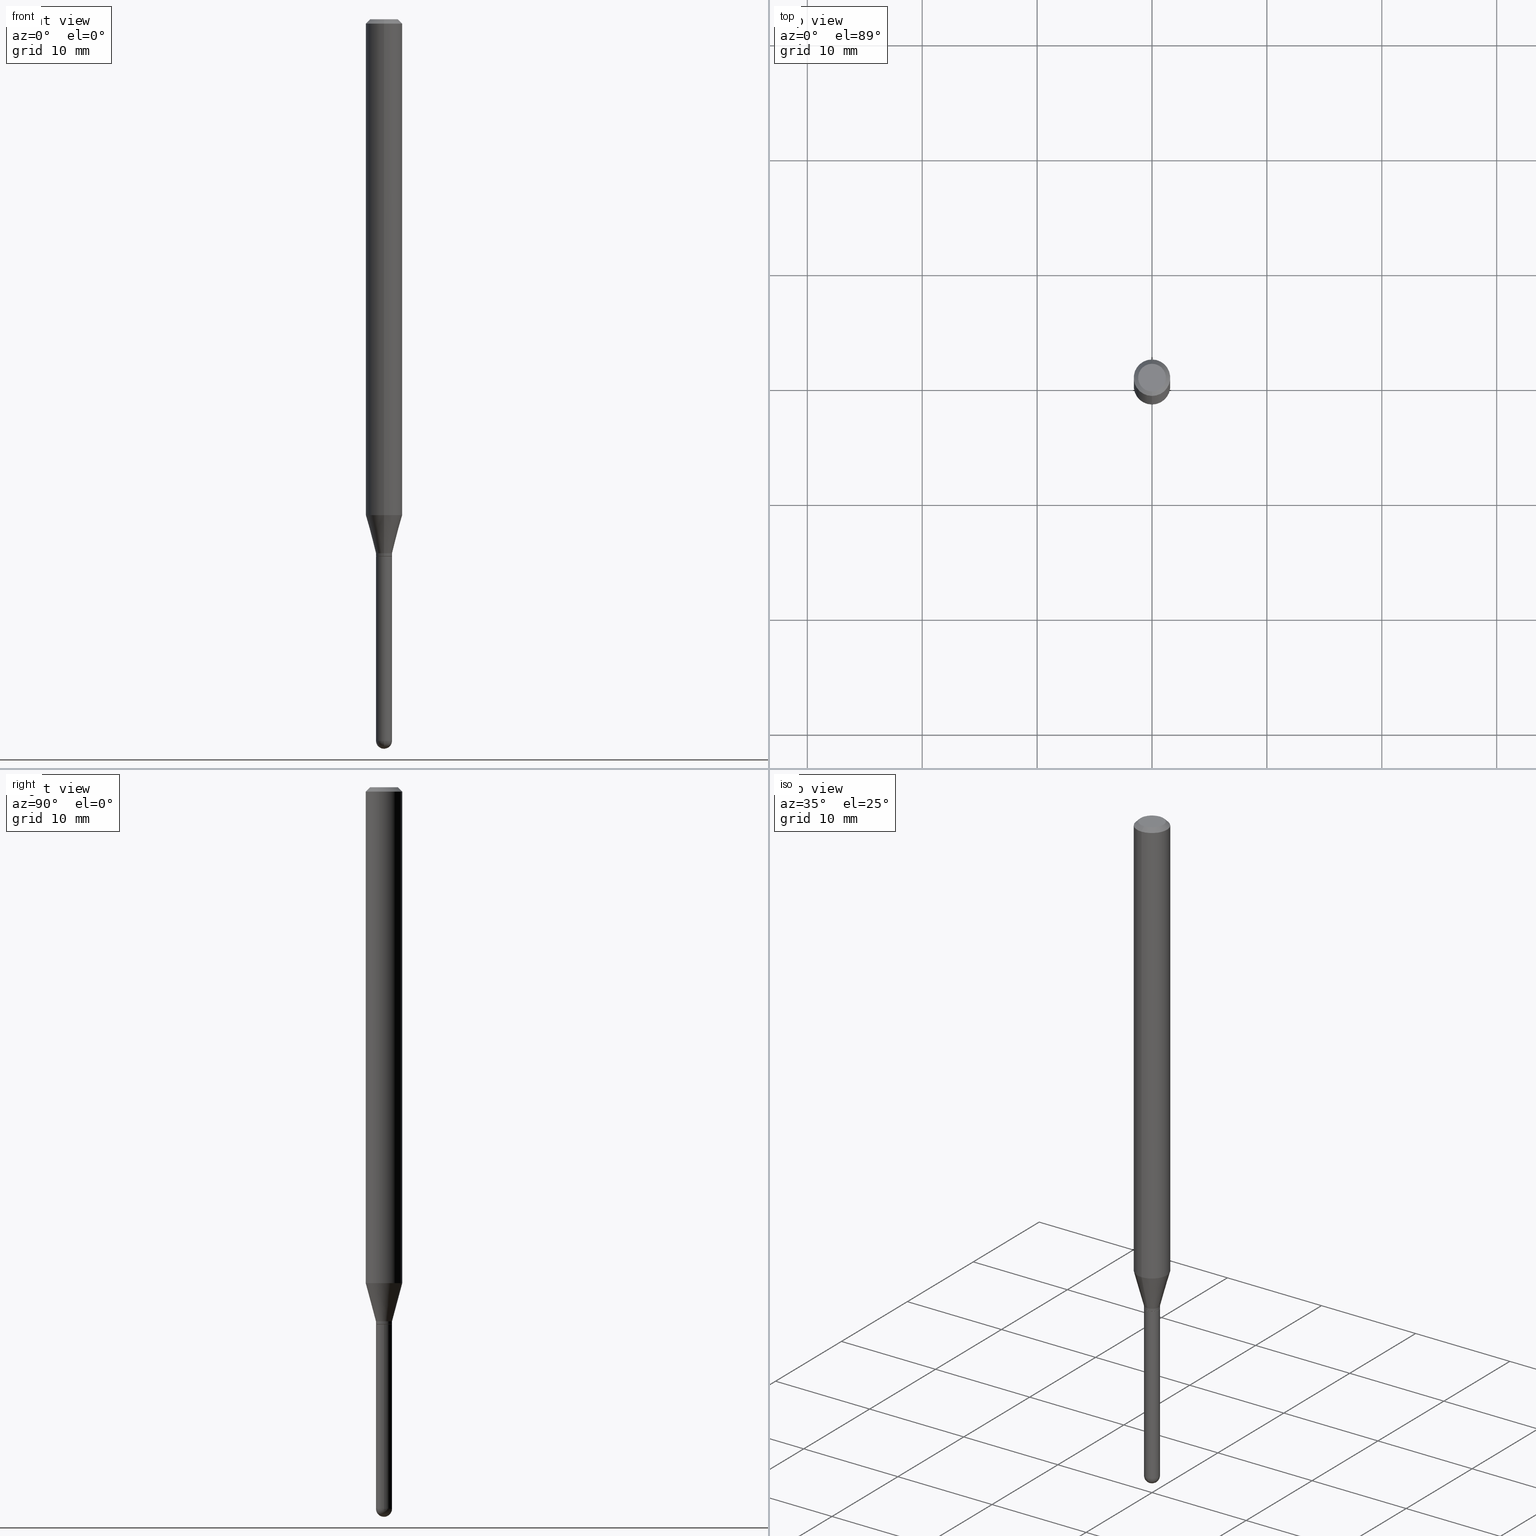
[diagram: canonical four-view strip — front | top / right | iso, engineering-drawing reading convention]
A machine part, canonical four-view strip (front | top / right | iso — engineering-drawing reading convention). The complete STEP part file that produces these views, byte-faithful:
ISO-10303-21;
HEADER;
FILE_DESCRIPTION (( 'STEP AP203' ),
    '1' );
FILE_NAME ('01017.STEP',
    '2024-03-07T19:48:25',
    ( '' ),
    ( '' ),
    'SwSTEP 2.0',
    'SolidWorks 2023',
    '' );
FILE_SCHEMA (( 'CONFIG_CONTROL_DESIGN' ));
ENDSEC;

DATA;
#1 = CC_DESIGN_APPROVAL ( #343, ( #149 ) ) ;
#2 = DATE_AND_TIME ( #474, #307 ) ;
#3 = DIRECTION ( 'NONE',  ( 1.000000000000000000, -6.982962677686279332E-15, 0.000000000000000000 ) ) ;
#4 = EDGE_CURVE ( 'NONE', #499, #385, #225, .T. ) ;
#5 = CARTESIAN_POINT ( 'NONE',  ( 1.920314736364331113E-16, 0.02749999999999141673, -2.472499999999999254 ) ) ;
#6 = DIRECTION ( 'NONE',  ( -2.445468806185136597E-29, 3.491481338843145583E-15, 1.000000000000000000 ) ) ;
#7 = DIRECTION ( 'NONE',  ( 1.000000000000000000, -6.982962677686265922E-15, 4.883557194083112340E-29 ) ) ;
#8 = DIRECTION ( 'NONE',  ( -2.445468806185136597E-29, 3.491481338843145583E-15, 1.000000000000000000 ) ) ;
#9 = EDGE_CURVE ( 'NONE', #385, #246, #301, .T. ) ;
#10 = AXIS2_PLACEMENT_3D ( 'NONE', #296, #298, #333 ) ;
#11 = PLANE ( 'NONE',  #130 ) ;
#12 = DIRECTION ( 'NONE',  ( -6.982962677686265922E-15, -1.000000000000000000, 3.491487976975052738E-15 ) ) ;
#13 = ORIENTED_EDGE ( 'NONE', *, *, #127, .T. ) ;
#14 = ORIENTED_EDGE ( 'NONE', *, *, #199, .F. ) ;
#15 = LINE ( 'NONE', #134, #336 ) ;
#16 = ADVANCED_FACE ( 'NONE', ( #106 ), #64, .T. ) ;
#17 = CIRCLE ( 'NONE', #496, 0.02750000000000000014 ) ;
#18 = LOCAL_TIME ( 14, 48, 25.00000000000000000, #470 ) ;
#19 = ORIENTED_EDGE ( 'NONE', *, *, #492, .F. ) ;
#20 = EDGE_LOOP ( 'NONE', ( #487, #187, #14, #189 ) ) ;
#21 = LINE ( 'NONE', #169, #473 ) ;
#22 = APPROVAL_ROLE ( '' ) ;
#23 = CARTESIAN_POINT ( 'NONE',  ( 4.499654074276417008E-29, -6.424337877634096660E-15, -1.840000000000000080 ) ) ;
#24 = EDGE_LOOP ( 'NONE', ( #109, #279, #379, #260 ) ) ;
#25 = DIRECTION ( 'NONE',  ( -6.982962677686265922E-15, -1.000000000000000000, 0.000000000000000000 ) ) ;
#26 = EDGE_CURVE ( 'NONE', #33, #167, #46, .T. ) ;
#27 = ORIENTED_EDGE ( 'NONE', *, *, #230, .T. ) ;
#28 = AXIS2_PLACEMENT_3D ( 'NONE', #346, #228, #185 ) ;
#29 = CARTESIAN_POINT ( 'NONE',  ( 6.044069915997506284E-29, -8.636055388987333140E-15, -2.472500000000000142 ) ) ;
#30 = CYLINDRICAL_SURFACE ( 'NONE', #77, 0.02750000000000000014 ) ;
#31 = AXIS2_PLACEMENT_3D ( 'NONE', #258, #447, #489 ) ;
#32 = ORIENTED_EDGE ( 'NONE', *, *, #267, .T. ) ;
#33 = VERTEX_POINT ( 'NONE', #426 ) ;
#34 = APPLICATION_PROTOCOL_DEFINITION ( 'international standard', 'config_control_design', 1994, #415 ) ;
#35 = LINE ( 'NONE', #295, #335 ) ;
#36 = PERSON_AND_ORGANIZATION_ROLE ( 'design_owner' ) ;
#37 = DIRECTION ( 'NONE',  ( 6.982962677686265922E-15, 1.000000000000000000, -3.483106191921935554E-15 ) ) ;
#38 = PERSON_AND_ORGANIZATION ( #242, #291 ) ;
#39 = CIRCLE ( 'NONE', #354, 0.02750000000000000014 ) ;
#40 = AXIS2_PLACEMENT_3D ( 'NONE', #290, #338, #455 ) ;
#41 = FACE_OUTER_BOUND ( 'NONE', #355, .T. ) ;
#42 = PERSON_AND_ORGANIZATION ( #242, #291 ) ;
#43 = EDGE_CURVE ( 'NONE', #337, #292, #288, .T. ) ;
#44 = DATE_TIME_ROLE ( 'creation_date' ) ;
#45 = CARTESIAN_POINT ( 'NONE',  ( 4.440892098501044258E-16, 0.06249999999999995837, -0.01500000000000022669 ) ) ;
#46 = CIRCLE ( 'NONE', #150, 0.02750000000000000014 ) ;
#47 = AXIS2_PLACEMENT_3D ( 'NONE', #23, #374, #253 ) ;
#48 = PERSON_AND_ORGANIZATION ( #242, #291 ) ;
#49 = DIRECTION ( 'NONE',  ( -2.445468806185136597E-29, 3.491481338843145583E-15, 1.000000000000000000 ) ) ;
#50 = CARTESIAN_POINT ( 'NONE',  ( 3.668196256203603906E-31, -5.237231965462582657E-17, -0.01500000000000000812 ) ) ;
#51 = EDGE_LOOP ( 'NONE', ( #435, #152, #68, #162 ) ) ;
#52 = CARTESIAN_POINT ( 'NONE',  ( 6.046421623292748621E-29, -8.632687610289675147E-15, -2.472499999999999254 ) ) ;
#53 = ADVANCED_FACE ( 'NONE', ( #347 ), #505, .T. ) ;
#54 = DIRECTION ( 'NONE',  ( -6.982962677686265922E-15, -1.000000000000000000, 4.370956789862821150E-15 ) ) ;
#55 = CLOSED_SHELL ( 'NONE', ( #178, #406, #484, #53, #326, #443, #186, #16, #297, #509, #389, #428 ) ) ;
#56 = AXIS2_PLACEMENT_3D ( 'NONE', #59, #348, #466 ) ;
#57 = ORIENTED_EDGE ( 'NONE', *, *, #105, .T. ) ;
#58 = DIRECTION ( 'NONE',  ( 1.000000000000000000, -6.982962677686279332E-15, 0.000000000000000000 ) ) ;
#59 = CARTESIAN_POINT ( 'NONE',  ( 4.475199432568393700E-29, -6.389422997864345911E-15, -1.829999999999999849 ) ) ;
#60 = ORIENTED_EDGE ( 'NONE', *, *, #26, .F. ) ;
#61 = DIRECTION ( 'NONE',  ( -2.445464170802401133E-29, 3.491487976975052738E-15, 1.000000000000000000 ) ) ;
#62 = EDGE_LOOP ( 'NONE', ( #427, #352, #493, #236, #429 ) ) ;
#63 = CARTESIAN_POINT ( 'NONE',  ( 6.044069915997506284E-29, -8.636055388987333140E-15, -2.472500000000000142 ) ) ;
#64 = CONICAL_SURFACE ( 'NONE', #211, 0.06250000000000000000, 0.7853981633974483900 ) ;
#65 = ORIENTED_EDGE ( 'NONE', *, *, #471, .T. ) ;
#66 = DIRECTION ( 'NONE',  ( -2.445464170802400853E-29, 3.491487976975052738E-15, 1.000000000000000000 ) ) ;
#67 = VERTEX_POINT ( 'NONE', #350 ) ;
#68 = ORIENTED_EDGE ( 'NONE', *, *, #43, .F. ) ;
#69 = DIRECTION ( 'NONE',  ( 1.000000000000000000, -6.982962677686279332E-15, 0.000000000000000000 ) ) ;
#70 = ORIENTED_EDGE ( 'NONE', *, *, #501, .F. ) ;
#71 = APPROVAL_PERSON_ORGANIZATION ( #42, #190, #465 ) ;
#72 = DIRECTION ( 'NONE',  ( -1.000000000000000000, 6.982962677686265922E-15, -4.883557194083112901E-29 ) ) ;
#73 = VERTEX_POINT ( 'NONE', #318 ) ;
#74 = EDGE_CURVE ( 'NONE', #67, #299, #475, .T. ) ;
#75 = UNCERTAINTY_MEASURE_WITH_UNIT (LENGTH_MEASURE( 1.000000000000000082E-05 ), #485, 'distance_accuracy_value', 'NONE');
#76 = AXIS2_PLACEMENT_3D ( 'NONE', #269, #66, #467 ) ;
#77 = AXIS2_PLACEMENT_3D ( 'NONE', #401, #6, #155 ) ;
#78 = DIRECTION ( 'NONE',  ( -2.445464170802400853E-29, 3.491487976975052738E-15, 1.000000000000000000 ) ) ;
#79 = ADVANCED_FACE ( 'NONE', ( #357 ), #321, .T. ) ;
#80 = PERSON_AND_ORGANIZATION_ROLE ( 'creator' ) ;
#81 = DIRECTION ( 'NONE',  ( -6.982962677686265922E-15, -1.000000000000000000, 3.483106191921935554E-15 ) ) ;
#82 = ORIENTED_EDGE ( 'NONE', *, *, #334, .F. ) ;
#83 = ORIENTED_EDGE ( 'NONE', *, *, #127, .F. ) ;
#84 = CYLINDRICAL_SURFACE ( 'NONE', #323, 0.02750000000000000014 ) ;
#85 = DIRECTION ( 'NONE',  ( -2.445464170802400853E-29, 3.491487976975052738E-15, 1.000000000000000000 ) ) ;
#86 = CARTESIAN_POINT ( 'NONE',  ( -0.02750000000000000014, -7.333107384546504605E-15, -2.472499999999999254 ) ) ;
#87 = CIRCLE ( 'NONE', #76, 0.02749999999999992381 ) ;
#88 = CIRCLE ( 'NONE', #378, 0.02699999999999999969 ) ;
#89 = EDGE_LOOP ( 'NONE', ( #165, #317, #293, #202 ) ) ;
#90 = EDGE_LOOP ( 'NONE', ( #229, #329 ) ) ;
#91 = DIRECTION ( 'NONE',  ( -7.105427357601001070E-15, -1.000000000000000000, 0.000000000000000000 ) ) ;
#92 =( NAMED_UNIT ( * ) PLANE_ANGLE_UNIT ( ) SI_UNIT ( $, .RADIAN. ) );
#93 = EDGE_LOOP ( 'NONE', ( #457, #32, #404, #482, #60 ) ) ;
#94 = CYLINDRICAL_SURFACE ( 'NONE', #183, 0.02749999999999992034 ) ;
#95 = EDGE_CURVE ( 'NONE', #210, #337, #395, .T. ) ;
#96 = AXIS2_PLACEMENT_3D ( 'NONE', #325, #126, #486 ) ;
#97 = AXIS2_PLACEMENT_3D ( 'NONE', #370, #129, #408 ) ;
#98 = CARTESIAN_POINT ( 'NONE',  ( -1.920314736363269849E-16, -0.02750000000000631106, -1.829999999999999849 ) ) ;
#99 = CARTESIAN_POINT ( 'NONE',  ( 0.000000000000000000, 0.000000000000000000, 0.000000000000000000 ) ) ;
#100 = CC_DESIGN_DATE_AND_TIME_ASSIGNMENT ( #268, #44, ( #149 ) ) ;
#101 = DIRECTION ( 'NONE',  ( -2.445468806185136597E-29, 3.491481338843145583E-15, 1.000000000000000000 ) ) ;
#102 = ORIENTED_EDGE ( 'NONE', *, *, #476, .T. ) ;
#103 = VECTOR ( 'NONE', #423, 39.37007874015748143 ) ;
#104 = CARTESIAN_POINT ( 'NONE',  ( 3.197442310920880154E-16, 0.02749999999999352962, -1.829999999999999849 ) ) ;
#105 = EDGE_CURVE ( 'NONE', #167, #33, #282, .T. ) ;
#106 = FACE_OUTER_BOUND ( 'NONE', #24, .T. ) ;
#107 = COORDINATED_UNIVERSAL_TIME_OFFSET ( 5, 0, .BEHIND. ) ;
#108 = CARTESIAN_POINT ( 'NONE',  ( 3.840629472727447874E-16, 0.04749999999999999362, -1.747056831868805383E-16 ) ) ;
#109 = ORIENTED_EDGE ( 'NONE', *, *, #74, .F. ) ;
#110 = APPROVAL_STATUS ( 'not_yet_approved' ) ;
#111 = EDGE_CURVE ( 'NONE', #73, #133, #217, .T. ) ;
#112 = VECTOR ( 'NONE', #144, 39.37007874015748143 ) ;
#113 = MANIFOLD_SOLID_BREP ( 'Body-Move/Copy2[2]', #55 ) ;
#114 = AXIS2_PLACEMENT_3D ( 'NONE', #294, #417, #25 ) ;
#115 = COORDINATED_UNIVERSAL_TIME_OFFSET ( 5, 0, .BEHIND. ) ;
#116 = CC_DESIGN_PERSON_AND_ORGANIZATION_ASSIGNMENT ( #48, #511, ( #412 ) ) ;
#117 = DIRECTION ( 'NONE',  ( 1.000000000000000000, -6.982962677686279332E-15, 0.000000000000000000 ) ) ;
#118 = ORIENTED_EDGE ( 'NONE', *, *, #9, .F. ) ;
#119 = DIRECTION ( 'NONE',  ( 2.438088387897960049E-29, -3.491481338843145188E-15, -1.000000000000000000 ) ) ;
#120 = AXIS2_PLACEMENT_3D ( 'NONE', #405, #438, #483 ) ;
#121 = EDGE_CURVE ( 'NONE', #67, #508, #176, .T. ) ;
#122 = DIRECTION ( 'NONE',  ( -2.445468806185136877E-29, 3.491481338843145188E-15, 1.000000000000000000 ) ) ;
#123 = CONICAL_SURFACE ( 'NONE', #120, 0.02749999999999992034, 0.2617993877991504625 ) ;
#124 = DIMENSIONAL_EXPONENTS ( 1.000000000000000000, 0.000000000000000000, 0.000000000000000000, 0.000000000000000000, 0.000000000000000000, 0.000000000000000000, 0.000000000000000000 ) ;
#125 = DIRECTION ( 'NONE',  ( -6.982962677686265922E-15, -1.000000000000000000, 4.370956789862821150E-15 ) ) ;
#126 = DIRECTION ( 'NONE',  ( -2.445464170802400853E-29, 3.491487976975052738E-15, 1.000000000000000000 ) ) ;
#127 = EDGE_CURVE ( 'NONE', #133, #499, #21, .T. ) ;
#128 = CYLINDRICAL_SURFACE ( 'NONE', #193, 0.06250000000000000000 ) ;
#129 = DIRECTION ( 'NONE',  ( 2.445464170802400853E-29, -3.491487976975052738E-15, -1.000000000000000000 ) ) ;
#130 = AXIS2_PLACEMENT_3D ( 'NONE', #245, #243, #247 ) ;
#131 = VECTOR ( 'NONE', #122, 39.37007874015748143 ) ;
#132 = DIRECTION ( 'NONE',  ( -6.982962677686265922E-15, -1.000000000000000000, 0.000000000000000000 ) ) ;
#133 = VERTEX_POINT ( 'NONE', #141 ) ;
#134 = CARTESIAN_POINT ( 'NONE',  ( -4.364351673553916201E-16, -0.06250000000000000000, 2.182179985609407961E-16 ) ) ;
#135 = CARTESIAN_POINT ( 'NONE',  ( 2.166682302127886427E-46, -3.093459842154199593E-32, -8.860004280565514793E-18 ) ) ;
#136 = CARTESIAN_POINT ( 'NONE',  ( 6.044069915997506284E-29, -8.636055388987333140E-15, -2.472500000000000142 ) ) ;
#137 = ADVANCED_FACE ( 'NONE', ( #460 ), #504, .T. ) ;
#138 = SECURITY_CLASSIFICATION ( '', '', #353 ) ;
#139 = FACE_OUTER_BOUND ( 'NONE', #93, .T. ) ;
#140 = ORIENTED_EDGE ( 'NONE', *, *, #259, .T. ) ;
#141 = CARTESIAN_POINT ( 'NONE',  ( 1.953992523340712846E-16, 0.02749999999999340472, -1.839500000000000135 ) ) ;
#142 = ORIENTED_EDGE ( 'NONE', *, *, #230, .F. ) ;
#143 = EDGE_CURVE ( 'NONE', #337, #167, #35, .T. ) ;
#144 = DIRECTION ( 'NONE',  ( -2.445464170802401133E-29, 3.491487976975052738E-15, 1.000000000000000000 ) ) ;
#145 = CARTESIAN_POINT ( 'NONE',  ( 0.02750000000000000014, -6.616357137107761216E-15, -1.840000000000000080 ) ) ;
#146 = CIRCLE ( 'NONE', #512, 0.06250000000000000000 ) ;
#147 = CONICAL_SURFACE ( 'NONE', #507, 0.02749999999999992034, 0.2617993877991504625 ) ;
#148 = CALENDAR_DATE ( 2024, 7, 3 ) ;
#149 = PRODUCT_DEFINITION ( 'UNKNOWN', '', #412, #151 ) ;
#150 = AXIS2_PLACEMENT_3D ( 'NONE', #479, #49, #3 ) ;
#151 = DESIGN_CONTEXT ( 'detailed design', #442, 'design' ) ;
#152 = ORIENTED_EDGE ( 'NONE', *, *, #219, .T. ) ;
#153 = CARTESIAN_POINT ( 'NONE',  ( 6.046421623292748621E-29, -8.632687610289675147E-15, -2.472499999999999254 ) ) ;
#154 = PLANE ( 'NONE',  #306 ) ;
#155 = DIRECTION ( 'NONE',  ( 1.000000000000000000, -6.982962677686266711E-15, 4.876176775795935793E-29 ) ) ;
#156 = ORIENTED_EDGE ( 'NONE', *, *, #4, .F. ) ;
#157 = CARTESIAN_POINT ( 'NONE',  ( 6.046421623292748621E-29, -8.632687610289675147E-15, -2.472499999999999254 ) ) ;
#158 = DIRECTION ( 'NONE',  ( -2.445464170802400853E-29, 3.491487976975052738E-15, 1.000000000000000000 ) ) ;
#159 = CARTESIAN_POINT ( 'NONE',  ( 0.02750000000000000014, -7.720538110516904428E-15, -2.472499999999999254 ) ) ;
#160 = CIRCLE ( 'NONE', #249, 0.06250000000000000000 ) ;
#161 = FACE_OUTER_BOUND ( 'NONE', #62, .T. ) ;
#162 = ORIENTED_EDGE ( 'NONE', *, *, #95, .F. ) ;
#163 = LINE ( 'NONE', #332, #388 ) ;
#164 = VERTEX_POINT ( 'NONE', #180 ) ;
#165 = ORIENTED_EDGE ( 'NONE', *, *, #219, .F. ) ;
#166 = CIRCLE ( 'NONE', #248, 0.02750000000000009381 ) ;
#167 = VERTEX_POINT ( 'NONE', #145 ) ;
#168 =( GEOMETRIC_REPRESENTATION_CONTEXT ( 3 ) GLOBAL_UNCERTAINTY_ASSIGNED_CONTEXT ( ( #75 ) ) GLOBAL_UNIT_ASSIGNED_CONTEXT ( ( #485, #92, #437 ) ) REPRESENTATION_CONTEXT ( 'NONE', 'WORKASPACE' ) );
#169 = CARTESIAN_POINT ( 'NONE',  ( 1.953992523340269605E-16, 0.02749999999999992034, -9.601591936681367026E-17 ) ) ;
#170 = ORIENTED_EDGE ( 'NONE', *, *, #74, .T. ) ;
#171 = DIRECTION ( 'NONE',  ( -2.445464170802401133E-29, 3.491487976975052738E-15, 1.000000000000000000 ) ) ;
#172 = PERSON_AND_ORGANIZATION ( #242, #291 ) ;
#173 = DIRECTION ( 'NONE',  ( -2.445464170802400853E-29, 3.491487976975052738E-15, 1.000000000000000000 ) ) ;
#174 = ORIENTED_EDGE ( 'NONE', *, *, #397, .F. ) ;
#175 = CARTESIAN_POINT ( 'NONE',  ( 4.499662603380651271E-29, -6.424325663471388724E-15, -1.840000000000000080 ) ) ;
#176 = CIRCLE ( 'NONE', #369, 0.04749999999999999362 ) ;
#177 = VERTEX_POINT ( 'NONE', #305 ) ;
#178 = ADVANCED_FACE ( 'NONE', ( #494 ), #94, .T. ) ;
#179 = EDGE_LOOP ( 'NONE', ( #373, #170, #27, #390 ) ) ;
#180 = CARTESIAN_POINT ( 'NONE',  ( -1.885399922974841503E-16, -0.02700000000000642511, -1.840000000000000080 ) ) ;
#181 = PERSON_AND_ORGANIZATION ( #242, #291 ) ;
#182 = APPROVAL_DATE_TIME ( #2, #190 ) ;
#183 = AXIS2_PLACEMENT_3D ( 'NONE', #256, #311, #12 ) ;
#184 = AXIS2_PLACEMENT_3D ( 'NONE', #136, #250, #91 ) ;
#185 = DIRECTION ( 'NONE',  ( -6.982962677686265922E-15, -1.000000000000000000, 3.491487976975052738E-15 ) ) ;
#186 = ADVANCED_FACE ( 'NONE', ( #41 ), #128, .T. ) ;
#187 = ORIENTED_EDGE ( 'NONE', *, *, #111, .T. ) ;
#188 = CARTESIAN_POINT ( 'NONE',  ( 4.499654074276417008E-29, -6.424337877634096660E-15, -1.840000000000000080 ) ) ;
#189 = ORIENTED_EDGE ( 'NONE', *, *, #238, .F. ) ;
#190 = APPROVAL ( #227, 'UNSPECIFIED' ) ;
#191 = EDGE_LOOP ( 'NONE', ( #226, #459, #310, #503 ) ) ;
#192 = PERSON_AND_ORGANIZATION ( #242, #291 ) ;
#193 = AXIS2_PLACEMENT_3D ( 'NONE', #377, #78, #241 ) ;
#194 = LENGTH_MEASURE_WITH_UNIT ( LENGTH_MEASURE( 0.02539999999999999897 ), #399 );
#195 = DIRECTION ( 'NONE',  ( 1.000000000000000000, -6.982962677686266711E-15, 4.876176775795935793E-29 ) ) ;
#196 = AXIS2_PLACEMENT_3D ( 'NONE', #356, #434, #396 ) ;
#197 = PERSON_AND_ORGANIZATION_ROLE ( 'classification_officer' ) ;
#198 = DIRECTION ( 'NONE',  ( -4.851104656540964275E-15, -0.7071067811865500152, -0.7071067811865450192 ) ) ;
#199 = EDGE_CURVE ( 'NONE', #407, #133, #87, .T. ) ;
#200 = DIRECTION ( 'NONE',  ( -2.445464170802400853E-29, 3.491487976975052738E-15, 1.000000000000000000 ) ) ;
#201 = CARTESIAN_POINT ( 'NONE',  ( 4.155768553895059531E-29, -5.933358629521309824E-15, -1.699378221735089456 ) ) ;
#202 = ORIENTED_EDGE ( 'NONE', *, *, #308, .F. ) ;
#203 = DIRECTION ( 'NONE',  ( -2.445468806185136597E-29, 3.491481338843145583E-15, 1.000000000000000000 ) ) ;
#204 = EDGE_CURVE ( 'NONE', #508, #246, #472, .T. ) ;
#205 = CONICAL_SURFACE ( 'NONE', #196, 0.02699999999999999969, 0.7853981633974739252 ) ;
#206 = CC_DESIGN_SECURITY_CLASSIFICATION ( #138, ( #412 ) ) ;
#207 = FACE_OUTER_BOUND ( 'NONE', #90, .T. ) ;
#208 = ORIENTED_EDGE ( 'NONE', *, *, #469, .T. ) ;
#209 = ORIENTED_EDGE ( 'NONE', *, *, #199, .T. ) ;
#210 = VERTEX_POINT ( 'NONE', #358 ) ;
#211 = AXIS2_PLACEMENT_3D ( 'NONE', #384, #380, #37 ) ;
#212 = AXIS2_PLACEMENT_3D ( 'NONE', #232, #420, #328 ) ;
#213 = APPROVAL_STATUS ( 'not_yet_approved' ) ;
#214 = ADVANCED_FACE ( 'NONE', ( #287 ), #154, .F. ) ;
#215 = MECHANICAL_CONTEXT ( 'NONE', #415, 'mechanical' ) ;
#216 = EDGE_LOOP ( 'NONE', ( #140, #409, #142, #266 ) ) ;
#217 = LINE ( 'NONE', #376, #490 ) ;
#218 = VERTEX_POINT ( 'NONE', #86 ) ;
#219 = EDGE_CURVE ( 'NONE', #177, #292, #166, .T. ) ;
#220 = AXIS2_PLACEMENT_3D ( 'NONE', #153, #419, #461 ) ;
#221 = APPROVAL_PERSON_ORGANIZATION ( #181, #343, #22 ) ;
#222 = CARTESIAN_POINT ( 'NONE',  ( 4.440892098500625669E-16, 0.06250000000000000000, -2.182179985609407961E-16 ) ) ;
#223 = DIRECTION ( 'NONE',  ( 6.982962677686265922E-15, 1.000000000000000000, 0.000000000000000000 ) ) ;
#224 = PRODUCT_RELATED_PRODUCT_CATEGORY ( 'detail', '', ( #367 ) ) ;
#225 = LINE ( 'NONE', #394, #445 ) ;
#226 = ORIENTED_EDGE ( 'NONE', *, *, #111, .F. ) ;
#227 = APPROVAL_STATUS ( 'not_yet_approved' ) ;
#228 = DIRECTION ( 'NONE',  ( -2.445464170802400853E-29, 3.491487976975052738E-15, 1.000000000000000000 ) ) ;
#229 = ORIENTED_EDGE ( 'NONE', *, *, #365, .T. ) ;
#230 = EDGE_CURVE ( 'NONE', #299, #246, #146, .T. ) ;
#231 = CIRCLE ( 'NONE', #56, 0.02749999999999992034 ) ;
#232 = CARTESIAN_POINT ( 'NONE',  ( 4.499654074276417008E-29, -6.424337877634096660E-15, -1.840000000000000080 ) ) ;
#233 = ORIENTED_EDGE ( 'NONE', *, *, #383, .T. ) ;
#234 = EDGE_LOOP ( 'NONE', ( #65, #302, #275, #339 ) ) ;
#235 = APPROVAL_DATE_TIME ( #309, #343 ) ;
#236 = ORIENTED_EDGE ( 'NONE', *, *, #143, .F. ) ;
#237 = FACE_OUTER_BOUND ( 'NONE', #234, .T. ) ;
#238 = EDGE_CURVE ( 'NONE', #164, #407, #441, .T. ) ;
#239 = AXIS2_PLACEMENT_3D ( 'NONE', #322, #85, #125 ) ;
#240 = FACE_OUTER_BOUND ( 'NONE', #191, .T. ) ;
#241 = DIRECTION ( 'NONE',  ( -6.982962677686265922E-15, -1.000000000000000000, 3.491487976975052738E-15 ) ) ;
#242 = PERSON ( 'UNSPECIFIED', 'UNSPECIFIED', 'UNSPECIFIED', ('UNSPECIFIED'), ('UNSPECIFIED'), ('UNSPECIFIED') ) ;
#243 = DIRECTION ( 'NONE',  ( 2.445464170802400572E-29, -3.491487976975052738E-15, -1.000000000000000000 ) ) ;
#244 = CYLINDRICAL_SURFACE ( 'NONE', #40, 0.02749999999999992034 ) ;
#245 = CARTESIAN_POINT ( 'NONE',  ( 3.316907271900976096E-16, 0.04749999999999999362, -1.702756810465977293E-16 ) ) ;
#246 = VERTEX_POINT ( 'NONE', #45 ) ;
#247 = DIRECTION ( 'NONE',  ( 6.982962677686265922E-15, 1.000000000000000000, -3.491487976975052738E-15 ) ) ;
#248 = AXIS2_PLACEMENT_3D ( 'NONE', #285, #7, #444 ) ;
#249 = AXIS2_PLACEMENT_3D ( 'NONE', #50, #200, #453 ) ;
#250 = DIRECTION ( 'NONE',  ( -1.000000000000000000, 7.105427357601001070E-15, -4.926315508542082329E-29 ) ) ;
#251 = CARTESIAN_POINT ( 'NONE',  ( 4.364351673553919652E-16, 0.06249999999999995143, -0.01500000000000022669 ) ) ;
#252 = ORIENTED_EDGE ( 'NONE', *, *, #26, .T. ) ;
#253 = DIRECTION ( 'NONE',  ( -6.982962677686265133E-15, -1.000000000000000000, 0.000000000000000000 ) ) ;
#254 = FACE_OUTER_BOUND ( 'NONE', #179, .T. ) ;
#255 = CIRCLE ( 'NONE', #96, 0.04749999999999999362 ) ;
#256 = CARTESIAN_POINT ( 'NONE',  ( 0.000000000000000000, 0.000000000000000000, 0.000000000000000000 ) ) ;
#257 = DIRECTION ( 'NONE',  ( 0.000000000000000000, 0.000000000000000000, 1.000000000000000000 ) ) ;
#258 = CARTESIAN_POINT ( 'NONE',  ( 4.475199432568393700E-29, -6.389422997864345911E-15, -1.829999999999999849 ) ) ;
#259 = EDGE_CURVE ( 'NONE', #368, #385, #452, .T. ) ;
#260 = ORIENTED_EDGE ( 'NONE', *, *, #397, .T. ) ;
#261 = DIRECTION ( 'NONE',  ( -2.445464170802400853E-29, 3.491487976975052738E-15, 1.000000000000000000 ) ) ;
#262 = ORIENTED_EDGE ( 'NONE', *, *, #431, .F. ) ;
#263 = CIRCLE ( 'NONE', #31, 0.02749999999999992034 ) ;
#264 = PLANE ( 'NONE',  #212 ) ;
#265 = DATE_AND_TIME ( #478, #481 ) ;
#266 = ORIENTED_EDGE ( 'NONE', *, *, #439, .F. ) ;
#267 = EDGE_CURVE ( 'NONE', #218, #210, #39, .T. ) ;
#268 = DATE_AND_TIME ( #314, #272 ) ;
#269 = CARTESIAN_POINT ( 'NONE',  ( 4.498431342191016936E-29, -6.422592133645610739E-15, -1.839500000000000135 ) ) ;
#270 = DATE_AND_TIME ( #148, #18 ) ;
#271 = CLOSED_SHELL ( 'NONE', ( #360, #79, #214, #137, #414 ) ) ;
#272 = LOCAL_TIME ( 14, 48, 25.00000000000000000, #107 ) ;
#273 = ORIENTED_EDGE ( 'NONE', *, *, #334, .T. ) ;
#274 = DATE_TIME_ROLE ( 'classification_date' ) ;
#275 = ORIENTED_EDGE ( 'NONE', *, *, #259, .F. ) ;
#276 = CARTESIAN_POINT ( 'NONE',  ( 4.440892098501039328E-16, 0.06249999999999404643, -1.699378221735089678 ) ) ;
#277 = CALENDAR_DATE ( 2024, 7, 3 ) ;
#278 = CARTESIAN_POINT ( 'NONE',  ( -4.287811248607203282E-16, -0.06250000000000005551, -0.01499999999999979128 ) ) ;
#279 = ORIENTED_EDGE ( 'NONE', *, *, #365, .F. ) ;
#280 = DIRECTION ( 'NONE',  ( -2.445468806185136597E-29, 3.491481338843145583E-15, 1.000000000000000000 ) ) ;
#281 = LINE ( 'NONE', #359, #131 ) ;
#282 = CIRCLE ( 'NONE', #315, 0.02750000000000000014 ) ;
#283 = CC_DESIGN_APPROVAL ( #190, ( #138 ) ) ;
#284 = FACE_OUTER_BOUND ( 'NONE', #468, .T. ) ;
#285 = CARTESIAN_POINT ( 'NONE',  ( 6.044069915997506284E-29, -8.636055388987333140E-15, -2.472500000000000142 ) ) ;
#286 = CC_DESIGN_PERSON_AND_ORGANIZATION_ASSIGNMENT ( #38, #432, ( #412 ) ) ;
#287 = FACE_OUTER_BOUND ( 'NONE', #416, .T. ) ;
#288 = CIRCLE ( 'NONE', #220, 0.02750000000000000014 ) ;
#289 = MANIFOLD_SOLID_BREP ( 'Body-Move/Copy2[1]', #271 ) ;
#290 = CARTESIAN_POINT ( 'NONE',  ( 0.000000000000000000, 0.000000000000000000, 0.000000000000000000 ) ) ;
#291 = ORGANIZATION ( 'UNSPECIFIED', 'UNSPECIFIED', '' ) ;
#292 = VERTEX_POINT ( 'NONE', #5 ) ;
#293 = ORIENTED_EDGE ( 'NONE', *, *, #267, .F. ) ;
#294 = CARTESIAN_POINT ( 'NONE',  ( 4.498431342191016936E-29, -6.422592133645610739E-15, -1.839500000000000135 ) ) ;
#295 = CARTESIAN_POINT ( 'NONE',  ( 0.02750000000000000014, -1.920314736363723444E-16, 1.340948613343882413E-30 ) ) ;
#296 = CARTESIAN_POINT ( 'NONE',  ( 4.499654074276417008E-29, -6.424337877634096660E-15, -1.840000000000000080 ) ) ;
#297 = ADVANCED_FACE ( 'NONE', ( #207 ), #11, .F. ) ;
#298 = DIRECTION ( 'NONE',  ( -2.445464170802400853E-29, 3.491487976975052738E-15, 1.000000000000000000 ) ) ;
#299 = VERTEX_POINT ( 'NONE', #400 ) ;
#300 = DIRECTION ( 'NONE',  ( 1.000000000000000000, 0.000000000000000000, 0.000000000000000000 ) ) ;
#301 = LINE ( 'NONE', #222, #112 ) ;
#302 = ORIENTED_EDGE ( 'NONE', *, *, #4, .T. ) ;
#303 = ORIENTED_EDGE ( 'NONE', *, *, #492, .T. ) ;
#304 = ORIENTED_EDGE ( 'NONE', *, *, #476, .F. ) ;
#305 = CARTESIAN_POINT ( 'NONE',  ( 6.112496161815219763E-29, -8.730387236456691573E-15, -2.500000000000000000 ) ) ;
#306 = AXIS2_PLACEMENT_3D ( 'NONE', #320, #119, #477 ) ;
#307 = LOCAL_TIME ( 14, 48, 25.00000000000000000, #115 ) ;
#308 = EDGE_CURVE ( 'NONE', #292, #218, #17, .T. ) ;
#309 = DATE_AND_TIME ( #277, #362 ) ;
#310 = ORIENTED_EDGE ( 'NONE', *, *, #238, .T. ) ;
#311 = DIRECTION ( 'NONE',  ( -2.445464170802400853E-29, 3.491487976975052738E-15, 1.000000000000000000 ) ) ;
#312 = APPROVAL_ROLE ( '' ) ;
#313 = FACE_OUTER_BOUND ( 'NONE', #458, .T. ) ;
#314 = CALENDAR_DATE ( 2024, 7, 3 ) ;
#315 = AXIS2_PLACEMENT_3D ( 'NONE', #175, #372, #69 ) ;
#316 = CIRCLE ( 'NONE', #184, 0.02750000000000009381 ) ;
#317 = ORIENTED_EDGE ( 'NONE', *, *, #451, .T. ) ;
#318 = CARTESIAN_POINT ( 'NONE',  ( 1.936228954946719693E-16, 0.02699999999999357428, -1.840000000000000080 ) ) ;
#319 = CC_DESIGN_DATE_AND_TIME_ASSIGNMENT ( #270, #274, ( #138 ) ) ;
#320 = CARTESIAN_POINT ( 'NONE',  ( 1.920314736364173341E-16, 0.02749999999999357819, -1.840000000000000080 ) ) ;
#321 = SPHERICAL_SURFACE ( 'NONE', #506, 0.02750000000000009381 ) ;
#322 = CARTESIAN_POINT ( 'NONE',  ( 4.155768553895059531E-29, -5.933358629521309824E-15, -1.699378221735089456 ) ) ;
#323 = AXIS2_PLACEMENT_3D ( 'NONE', #364, #8, #195 ) ;
#324 = APPROVAL_PERSON_ORGANIZATION ( #192, #391, #312 ) ;
#325 = CARTESIAN_POINT ( 'NONE',  ( 2.166682302127886427E-46, -3.093459842154199593E-32, -8.860004280565514793E-18 ) ) ;
#326 = ADVANCED_FACE ( 'NONE', ( #237 ), #123, .T. ) ;
#327 = DIRECTION ( 'NONE',  ( 6.982962677686265922E-15, 1.000000000000000000, 0.000000000000000000 ) ) ;
#328 = DIRECTION ( 'NONE',  ( -6.982962677686265922E-15, -1.000000000000000000, 3.491487976975052738E-15 ) ) ;
#329 = ORIENTED_EDGE ( 'NONE', *, *, #121, .T. ) ;
#330 = CARTESIAN_POINT ( 'NONE',  ( -1.885399922974841503E-16, -0.02700000000000642511, -1.840000000000000080 ) ) ;
#331 = EDGE_LOOP ( 'NONE', ( #209, #13, #387, #304 ) ) ;
#332 = CARTESIAN_POINT ( 'NONE',  ( -1.920314736363269849E-16, -0.02750000000000631106, -1.829999999999999849 ) ) ;
#333 = DIRECTION ( 'NONE',  ( -6.982962677686265133E-15, -1.000000000000000000, 0.000000000000000000 ) ) ;
#334 = EDGE_CURVE ( 'NONE', #385, #368, #349, .T. ) ;
#335 = VECTOR ( 'NONE', #422, 39.37007874015748143 ) ;
#336 = VECTOR ( 'NONE', #171, 39.37007874015748143 ) ;
#337 = VERTEX_POINT ( 'NONE', #159 ) ;
#338 = DIRECTION ( 'NONE',  ( -2.445464170802400853E-29, 3.491487976975052738E-15, 1.000000000000000000 ) ) ;
#339 = ORIENTED_EDGE ( 'NONE', *, *, #383, .F. ) ;
#340 = COORDINATED_UNIVERSAL_TIME_OFFSET ( 5, 0, .BEHIND. ) ;
#341 = CARTESIAN_POINT ( 'NONE',  ( -1.920314736363274533E-16, -0.02750000000000644290, -1.839500000000000135 ) ) ;
#342 = APPLICATION_PROTOCOL_DEFINITION ( 'international standard', 'config_control_design', 1994, #442 ) ;
#343 = APPROVAL ( #213, 'UNSPECIFIED' ) ;
#344 = EDGE_LOOP ( 'NONE', ( #156, #303, #233, #82 ) ) ;
#345 = DIRECTION ( 'NONE',  ( -2.445464170802400853E-29, 3.491487976975052738E-15, 1.000000000000000000 ) ) ;
#346 = CARTESIAN_POINT ( 'NONE',  ( 0.000000000000000000, 0.000000000000000000, 0.000000000000000000 ) ) ;
#347 = FACE_OUTER_BOUND ( 'NONE', #216, .T. ) ;
#348 = DIRECTION ( 'NONE',  ( -2.445464170802400853E-29, 3.491487976975052738E-15, 1.000000000000000000 ) ) ;
#349 = CIRCLE ( 'NONE', #410, 0.06250000000000000000 ) ;
#350 = CARTESIAN_POINT ( 'NONE',  ( -3.773273898774340269E-16, -0.04749999999999999362, 1.569856746257494748E-16 ) ) ;
#351 = COORDINATED_UNIVERSAL_TIME_OFFSET ( 5, 0, .BEHIND. ) ;
#352 = ORIENTED_EDGE ( 'NONE', *, *, #421, .T. ) ;
#353 = SECURITY_CLASSIFICATION_LEVEL ( 'unclassified' ) ;
#354 = AXIS2_PLACEMENT_3D ( 'NONE', #52, #203, #58 ) ;
#355 = EDGE_LOOP ( 'NONE', ( #118, #273, #448, #174 ) ) ;
#356 = CARTESIAN_POINT ( 'NONE',  ( 4.499654074276417008E-29, -6.424337877634096660E-15, -1.840000000000000080 ) ) ;
#357 = FACE_OUTER_BOUND ( 'NONE', #89, .T. ) ;
#358 = CARTESIAN_POINT ( 'NONE',  ( -1.953992523339674261E-16, -0.02750000000000868070, -2.472499999999999254 ) ) ;
#359 = CARTESIAN_POINT ( 'NONE',  ( -0.02750000000000000014, 1.953992523340275521E-16, -1.352707149820099181E-30 ) ) ;
#360 = ADVANCED_FACE ( 'NONE', ( #161 ), #84, .T. ) ;
#361 = DIRECTION ( 'NONE',  ( -2.445464170802400853E-29, 3.491487976975052738E-15, 1.000000000000000000 ) ) ;
#362 = LOCAL_TIME ( 14, 48, 25.00000000000000000, #340 ) ;
#363 = DIRECTION ( 'NONE',  ( -4.937700262164674260E-15, -0.7071067811865632269, 0.7071067811865319186 ) ) ;
#364 = CARTESIAN_POINT ( 'NONE',  ( 0.000000000000000000, 0.000000000000000000, 0.000000000000000000 ) ) ;
#365 = EDGE_CURVE ( 'NONE', #508, #67, #255, .T. ) ;
#366 = LINE ( 'NONE', #498, #497 ) ;
#367 = PRODUCT ( '01017', '01017', '', ( #215 ) ) ;
#368 = VERTEX_POINT ( 'NONE', #393 ) ;
#369 = AXIS2_PLACEMENT_3D ( 'NONE', #135, #345, #381 ) ;
#370 = CARTESIAN_POINT ( 'NONE',  ( 3.668196256203603906E-31, -5.237231965462582657E-17, -0.01500000000000000812 ) ) ;
#371 = CIRCLE ( 'NONE', #10, 0.02699999999999999969 ) ;
#372 = DIRECTION ( 'NONE',  ( -2.445468806185136597E-29, 3.491481338843145583E-15, 1.000000000000000000 ) ) ;
#373 = ORIENTED_EDGE ( 'NONE', *, *, #121, .F. ) ;
#374 = DIRECTION ( 'NONE',  ( -2.445464170802400853E-29, 3.491487976975052738E-15, 1.000000000000000000 ) ) ;
#375 = CC_DESIGN_PERSON_AND_ORGANIZATION_ASSIGNMENT ( #172, #36, ( #367 ) ) ;
#376 = CARTESIAN_POINT ( 'NONE',  ( 1.918465386552720377E-16, 0.02699999999999357428, -1.840000000000000080 ) ) ;
#377 = CARTESIAN_POINT ( 'NONE',  ( 0.000000000000000000, 0.000000000000000000, 0.000000000000000000 ) ) ;
#378 = AXIS2_PLACEMENT_3D ( 'NONE', #188, #261, #502 ) ;
#379 = ORIENTED_EDGE ( 'NONE', *, *, #204, .T. ) ;
#380 = DIRECTION ( 'NONE',  ( 2.445464170802400853E-29, -3.491487976975052738E-15, -1.000000000000000000 ) ) ;
#381 = DIRECTION ( 'NONE',  ( -6.982962677686266711E-15, -1.000000000000000000, 3.491487976975053527E-15 ) ) ;
#382 = PRODUCT_DEFINITION_SHAPE ( 'NONE', 'NONE',  #149 ) ;
#383 = EDGE_CURVE ( 'NONE', #433, #368, #163, .T. ) ;
#384 = CARTESIAN_POINT ( 'NONE',  ( 3.668196256203603906E-31, -5.237231965462582657E-17, -0.01500000000000000812 ) ) ;
#385 = VERTEX_POINT ( 'NONE', #276 ) ;
#386 = SHAPE_DEFINITION_REPRESENTATION ( #382, #450 ) ;
#387 = ORIENTED_EDGE ( 'NONE', *, *, #471, .F. ) ;
#388 = VECTOR ( 'NONE', #488, 39.37007874015748854 ) ;
#389 = ADVANCED_FACE ( 'NONE', ( #240 ), #205, .T. ) ;
#390 = ORIENTED_EDGE ( 'NONE', *, *, #204, .F. ) ;
#391 = APPROVAL ( #110, 'UNSPECIFIED' ) ;
#392 = PERSON_AND_ORGANIZATION ( #242, #291 ) ;
#393 = CARTESIAN_POINT ( 'NONE',  ( -4.364351673553502542E-16, -0.06250000000000595357, -1.699378221735089234 ) ) ;
#394 = CARTESIAN_POINT ( 'NONE',  ( 1.953992523340717283E-16, 0.02749999999999352962, -1.829999999999999849 ) ) ;
#395 = CIRCLE ( 'NONE', #402, 0.02750000000000000014 ) ;
#396 = DIRECTION ( 'NONE',  ( -6.982962677686265133E-15, -1.000000000000000000, 0.000000000000000000 ) ) ;
#397 = EDGE_CURVE ( 'NONE', #246, #299, #160, .T. ) ;
#398 = CARTESIAN_POINT ( 'NONE',  ( 6.046421623292748621E-29, -8.632687610289675147E-15, -2.472499999999999254 ) ) ;
#399 =( LENGTH_UNIT ( ) NAMED_UNIT ( * ) SI_UNIT ( $, .METRE. ) );
#400 = CARTESIAN_POINT ( 'NONE',  ( -4.364351673553912750E-16, -0.06250000000000005551, -0.01499999999999979128 ) ) ;
#401 = CARTESIAN_POINT ( 'NONE',  ( 0.000000000000000000, 0.000000000000000000, 0.000000000000000000 ) ) ;
#402 = AXIS2_PLACEMENT_3D ( 'NONE', #157, #101, #413 ) ;
#403 = CC_DESIGN_APPROVAL ( #391, ( #412 ) ) ;
#404 = ORIENTED_EDGE ( 'NONE', *, *, #95, .T. ) ;
#405 = CARTESIAN_POINT ( 'NONE',  ( 4.475199432568393700E-29, -6.389422997864345911E-15, -1.829999999999999849 ) ) ;
#406 = ADVANCED_FACE ( 'NONE', ( #449 ), #446, .T. ) ;
#407 = VERTEX_POINT ( 'NONE', #341 ) ;
#408 = DIRECTION ( 'NONE',  ( 6.982962677686265922E-15, 1.000000000000000000, -3.483106191921935554E-15 ) ) ;
#409 = ORIENTED_EDGE ( 'NONE', *, *, #9, .T. ) ;
#410 = AXIS2_PLACEMENT_3D ( 'NONE', #201, #361, #54 ) ;
#411 = VECTOR ( 'NONE', #363, 39.37007874015748143 ) ;
#412 = PRODUCT_DEFINITION_FORMATION_WITH_SPECIFIED_SOURCE ( 'ANY', '', #367, .NOT_KNOWN. ) ;
#413 = DIRECTION ( 'NONE',  ( 1.000000000000000000, -6.982962677686279332E-15, 0.000000000000000000 ) ) ;
#414 = ADVANCED_FACE ( 'NONE', ( #139 ), #30, .T. ) ;
#415 = APPLICATION_CONTEXT ( 'configuration controlled 3d designs of mechanical parts and assemblies' ) ;
#416 = EDGE_LOOP ( 'NONE', ( #57, #252 ) ) ;
#417 = DIRECTION ( 'NONE',  ( -2.445464170802400853E-29, 3.491487976975052738E-15, 1.000000000000000000 ) ) ;
#418 = DIRECTION ( 'NONE',  ( -2.445464170802401133E-29, 3.491487976975052738E-15, 1.000000000000000000 ) ) ;
#419 = DIRECTION ( 'NONE',  ( -2.445468806185136597E-29, 3.491481338843145583E-15, 1.000000000000000000 ) ) ;
#420 = DIRECTION ( 'NONE',  ( -2.445464170802400572E-29, 3.491487976975052738E-15, 1.000000000000000000 ) ) ;
#421 = EDGE_CURVE ( 'NONE', #218, #33, #281, .T. ) ;
#422 = DIRECTION ( 'NONE',  ( -2.445468806185136877E-29, 3.491481338843145188E-15, 1.000000000000000000 ) ) ;
#423 = DIRECTION ( 'NONE',  ( 4.937700262164548042E-15, 0.7071067811865451302, -0.7071067811865499042 ) ) ;
#424 = CC_DESIGN_PERSON_AND_ORGANIZATION_ASSIGNMENT ( #510, #197, ( #138 ) ) ;
#425 = APPROVAL_DATE_TIME ( #265, #391 ) ;
#426 = CARTESIAN_POINT ( 'NONE',  ( -0.02750000000000000014, -7.333107384546504605E-15, -1.840000000000000080 ) ) ;
#427 = ORIENTED_EDGE ( 'NONE', *, *, #308, .T. ) ;
#428 = ADVANCED_FACE ( 'NONE', ( #284 ), #244, .T. ) ;
#429 = ORIENTED_EDGE ( 'NONE', *, *, #43, .T. ) ;
#430 = CONICAL_SURFACE ( 'NONE', #97, 0.06250000000000000000, 0.7853981633974483900 ) ;
#431 = EDGE_CURVE ( 'NONE', #73, #164, #371, .T. ) ;
#432 = PERSON_AND_ORGANIZATION_ROLE ( 'design_supplier' ) ;
#433 = VERTEX_POINT ( 'NONE', #98 ) ;
#434 = DIRECTION ( 'NONE',  ( -2.445464170802400853E-29, 3.491487976975052738E-15, 1.000000000000000000 ) ) ;
#435 = ORIENTED_EDGE ( 'NONE', *, *, #451, .F. ) ;
#436 = DIRECTION ( 'NONE',  ( 1.839019923739601499E-15, 0.2588190451025251249, 0.9659258262890670910 ) ) ;
#437 =( NAMED_UNIT ( * ) SI_UNIT ( $, .STERADIAN. ) SOLID_ANGLE_UNIT ( ) );
#438 = DIRECTION ( 'NONE',  ( -2.445464170802400853E-29, 3.491487976975052738E-15, 1.000000000000000000 ) ) ;
#439 = EDGE_CURVE ( 'NONE', #368, #299, #15, .T. ) ;
#440 = CARTESIAN_POINT ( 'NONE',  ( 3.668196256203603906E-31, -5.237231965462582657E-17, -0.01500000000000000812 ) ) ;
#441 = LINE ( 'NONE', #330, #411 ) ;
#442 = APPLICATION_CONTEXT ( 'configuration controlled 3d designs of mechanical parts and assemblies' ) ;
#443 = ADVANCED_FACE ( 'NONE', ( #495 ), #147, .T. ) ;
#444 = DIRECTION ( 'NONE',  ( 6.982962677686265922E-15, 1.000000000000000000, 0.000000000000000000 ) ) ;
#445 = VECTOR ( 'NONE', #436, 39.37007874015748854 ) ;
#446 = CONICAL_SURFACE ( 'NONE', #47, 0.02699999999999999969, 0.7853981633974739252 ) ;
#447 = DIRECTION ( 'NONE',  ( -2.445464170802400853E-29, 3.491487976975052738E-15, 1.000000000000000000 ) ) ;
#448 = ORIENTED_EDGE ( 'NONE', *, *, #439, .T. ) ;
#449 = FACE_OUTER_BOUND ( 'NONE', #20, .T. ) ;
#450 = ADVANCED_BREP_SHAPE_REPRESENTATION ( '01017', ( #289, #113, #464 ), #168 ) ;
#451 = EDGE_CURVE ( 'NONE', #177, #210, #316, .T. ) ;
#452 = CIRCLE ( 'NONE', #239, 0.06250000000000000000 ) ;
#453 = DIRECTION ( 'NONE',  ( -6.982962677686265922E-15, -1.000000000000000000, 3.483106191921935554E-15 ) ) ;
#454 = CIRCLE ( 'NONE', #114, 0.02749999999999992381 ) ;
#455 = DIRECTION ( 'NONE',  ( -6.982962677686265922E-15, -1.000000000000000000, 3.491487976975052738E-15 ) ) ;
#456 = CARTESIAN_POINT ( 'NONE',  ( 4.475199432568393700E-29, -6.389422997864345911E-15, -1.829999999999999849 ) ) ;
#457 = ORIENTED_EDGE ( 'NONE', *, *, #421, .F. ) ;
#458 = EDGE_LOOP ( 'NONE', ( #70, #262 ) ) ;
#459 = ORIENTED_EDGE ( 'NONE', *, *, #431, .T. ) ;
#460 = FACE_OUTER_BOUND ( 'NONE', #51, .T. ) ;
#461 = DIRECTION ( 'NONE',  ( 1.000000000000000000, -6.982962677686279332E-15, 0.000000000000000000 ) ) ;
#462 = CC_DESIGN_PERSON_AND_ORGANIZATION_ASSIGNMENT ( #392, #80, ( #149 ) ) ;
#463 = AXIS2_PLACEMENT_3D ( 'NONE', #63, #72, #223 ) ;
#464 = AXIS2_PLACEMENT_3D ( 'NONE', #99, #257, #300 ) ;
#465 = APPROVAL_ROLE ( '' ) ;
#466 = DIRECTION ( 'NONE',  ( -6.982962677686265922E-15, -1.000000000000000000, 0.000000000000000000 ) ) ;
#467 = DIRECTION ( 'NONE',  ( -6.982962677686265922E-15, -1.000000000000000000, 0.000000000000000000 ) ) ;
#468 = EDGE_LOOP ( 'NONE', ( #83, #208, #102, #19 ) ) ;
#469 = EDGE_CURVE ( 'NONE', #133, #407, #454, .T. ) ;
#470 = COORDINATED_UNIVERSAL_TIME_OFFSET ( 5, 0, .BEHIND. ) ;
#471 = EDGE_CURVE ( 'NONE', #433, #499, #263, .T. ) ;
#472 = LINE ( 'NONE', #251, #103 ) ;
#473 = VECTOR ( 'NONE', #418, 39.37007874015748143 ) ;
#474 = CALENDAR_DATE ( 2024, 7, 3 ) ;
#475 = LINE ( 'NONE', #278, #480 ) ;
#476 = EDGE_CURVE ( 'NONE', #407, #433, #366, .T. ) ;
#477 = DIRECTION ( 'NONE',  ( -1.000000000000000000, 6.982962677686265922E-15, -4.876176775795935793E-29 ) ) ;
#478 = CALENDAR_DATE ( 2024, 7, 3 ) ;
#479 = CARTESIAN_POINT ( 'NONE',  ( 4.499662603380651271E-29, -6.424325663471388724E-15, -1.840000000000000080 ) ) ;
#480 = VECTOR ( 'NONE', #198, 39.37007874015748143 ) ;
#481 = LOCAL_TIME ( 14, 48, 25.00000000000000000, #351 ) ;
#482 = ORIENTED_EDGE ( 'NONE', *, *, #143, .T. ) ;
#483 = DIRECTION ( 'NONE',  ( -6.982962677686265922E-15, -1.000000000000000000, 0.000000000000000000 ) ) ;
#484 = ADVANCED_FACE ( 'NONE', ( #254 ), #430, .T. ) ;
#485 =( CONVERSION_BASED_UNIT ( 'INCH', #194 ) LENGTH_UNIT ( ) NAMED_UNIT ( #124 ) );
#486 = DIRECTION ( 'NONE',  ( -6.982962677686266711E-15, -1.000000000000000000, 3.491487976975053527E-15 ) ) ;
#487 = ORIENTED_EDGE ( 'NONE', *, *, #501, .T. ) ;
#488 = DIRECTION ( 'NONE',  ( -1.807323732225331323E-15, -0.2588190451025183525, 0.9659258262890689783 ) ) ;
#489 = DIRECTION ( 'NONE',  ( -6.982962677686265922E-15, -1.000000000000000000, 0.000000000000000000 ) ) ;
#490 = VECTOR ( 'NONE', #500, 39.37007874015748143 ) ;
#491 = DIRECTION ( 'NONE',  ( -1.000000000000000000, 6.982962677686265922E-15, -4.883557194083112901E-29 ) ) ;
#492 = EDGE_CURVE ( 'NONE', #499, #433, #231, .T. ) ;
#493 = ORIENTED_EDGE ( 'NONE', *, *, #105, .F. ) ;
#494 = FACE_OUTER_BOUND ( 'NONE', #331, .T. ) ;
#495 = FACE_OUTER_BOUND ( 'NONE', #344, .T. ) ;
#496 = AXIS2_PLACEMENT_3D ( 'NONE', #398, #280, #117 ) ;
#497 = VECTOR ( 'NONE', #61, 39.37007874015748143 ) ;
#498 = CARTESIAN_POINT ( 'NONE',  ( -1.920314736363717528E-16, -0.02749999999999992034, 9.601591936681367026E-17 ) ) ;
#499 = VERTEX_POINT ( 'NONE', #104 ) ;
#500 = DIRECTION ( 'NONE',  ( 5.024295867788190974E-15, 0.7071067811865681119, 0.7071067811865270336 ) ) ;
#501 = EDGE_CURVE ( 'NONE', #164, #73, #88, .T. ) ;
#502 = DIRECTION ( 'NONE',  ( -6.982962677686265133E-15, -1.000000000000000000, 0.000000000000000000 ) ) ;
#503 = ORIENTED_EDGE ( 'NONE', *, *, #469, .F. ) ;
#504 = SPHERICAL_SURFACE ( 'NONE', #463, 0.02750000000000009381 ) ;
#505 = CYLINDRICAL_SURFACE ( 'NONE', #28, 0.06250000000000000000 ) ;
#506 = AXIS2_PLACEMENT_3D ( 'NONE', #29, #491, #327 ) ;
#507 = AXIS2_PLACEMENT_3D ( 'NONE', #456, #173, #132 ) ;
#508 = VERTEX_POINT ( 'NONE', #108 ) ;
#509 = ADVANCED_FACE ( 'NONE', ( #313 ), #264, .F. ) ;
#510 = PERSON_AND_ORGANIZATION ( #242, #291 ) ;
#511 = PERSON_AND_ORGANIZATION_ROLE ( 'creator' ) ;
#512 = AXIS2_PLACEMENT_3D ( 'NONE', #440, #158, #81 ) ;
ENDSEC;
END-ISO-10303-21;
